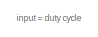
[diagram: root canvas - part 1/6, top center region]
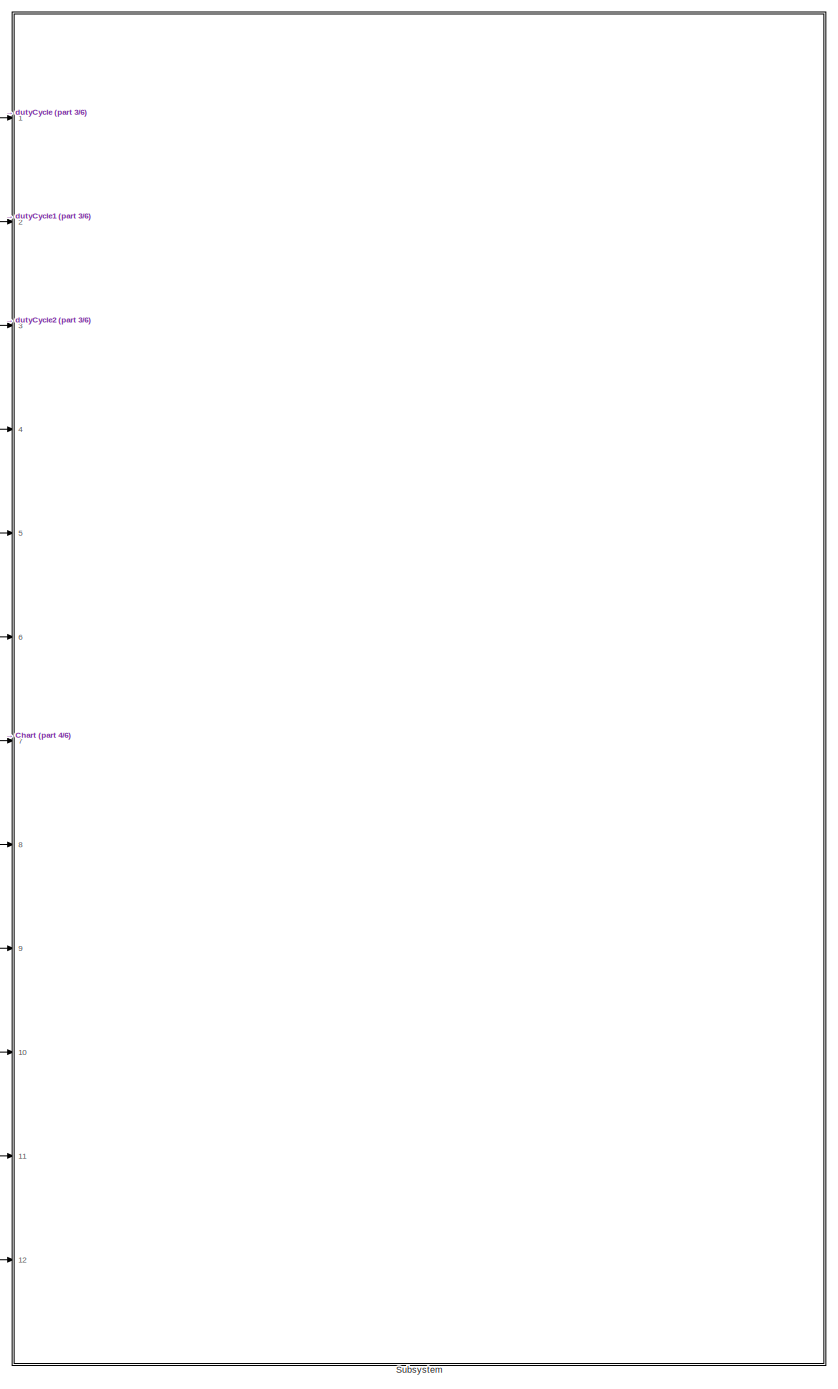
[diagram: root canvas - part 2/6, right side, full height]
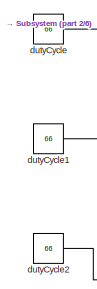
[diagram: root canvas - part 3/6, top center region]
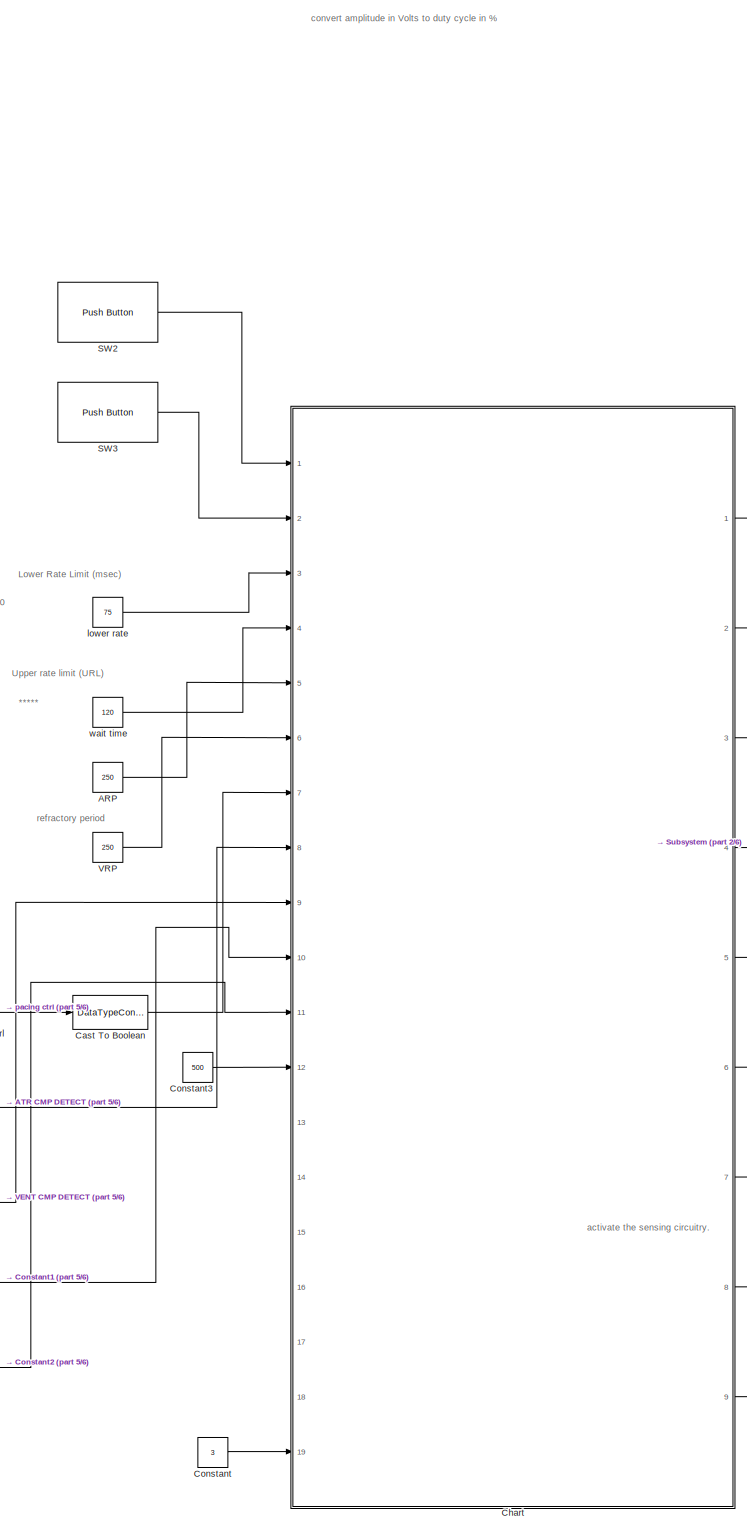
[diagram: root canvas - part 4/6, left side, full height]
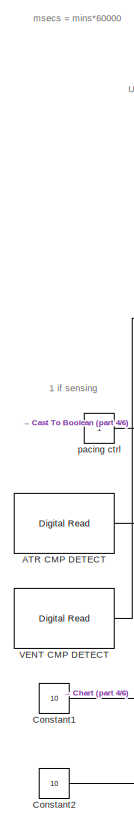
[diagram: root canvas - part 5/6, middle left region]
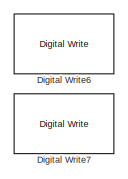
[diagram: root canvas - part 6/6, bottom right region]
MODEL slx_3f0ad3d819d9
KIND model
CONFIG AbsTol = auto
CONFIG EnableMultiTasking = on
CONFIG FixedStep = 1e-3
CONFIG MaxStep = auto
CONFIG MinStep = auto
CONFIG RelTol = 1e-3
CONFIG SampleTimeConstraint = Unconstrained
CONFIG Solver = FixedStepAuto
CONFIG SolverName = FixedStepAuto
CONFIG StartTime = 0.0
CONFIG StopTime = 10.0
BLOCK [Constant] ARP
  Value = 250
BLOCK [Reference] ATR CMP DETECT  REF=frdmk64flib/Digital Read
  Ports = [0, 1]
  SourceBlock = frdmk64flib/Digital Read
  SourceProductBaseCode = EC_FRDM_K64F
  SourceType = freedomk64f.DigitalRead
BLOCK [DataTypeConversion] Cast To Boolean
  OutDataTypeStr = boolean
  RndMeth = Floor
  SaturateOnIntegerOverflow = off
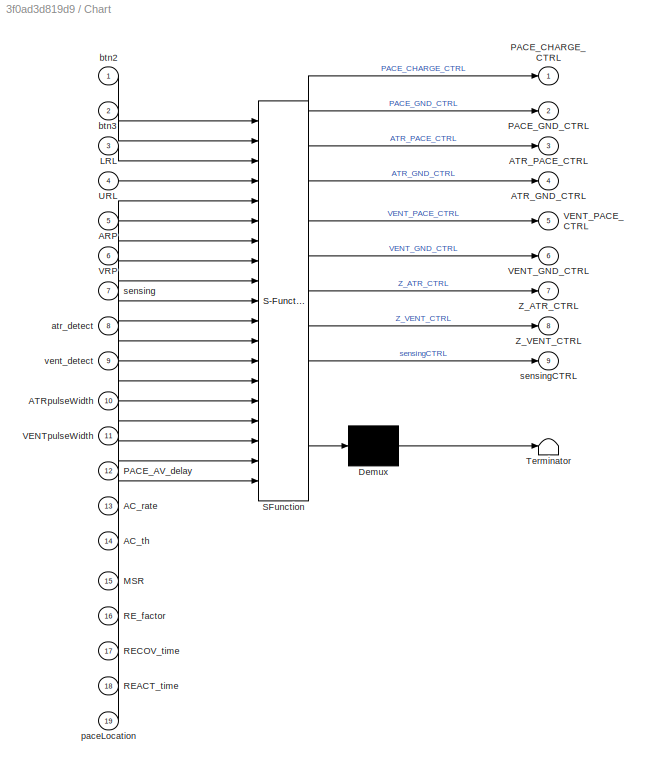
BLOCK [SubSystem] Chart
  ErrorFcn = Stateflow.Translate.translate
  PermitHierarchicalResolution = ExplicitOnly
  Ports = [19, 9]
  RequestExecContextInheritance = off
  SFBlockType = Chart
  TreatAsAtomicUnit = on
BLOCK [Demux] Chart/ Demux 
  Outputs = 1
  Ports = [1, 1]
BLOCK [S-Function] Chart/ SFunction 
  EnableBusSupport = on
  FunctionName = sf_sfun
  PortCounts = [19 10]
  Ports = [19, 10]
  SFcnIsStateOwnerBlock = off
  SFunctionDeploymentMode = off
  Tag = Stateflow S-Function 1
BLOCK [Terminator] Chart/ Terminator 
BLOCK [Inport] Chart/AC_rate
  Port = 13
BLOCK [Inport] Chart/AC_th
  Port = 14
BLOCK [Inport] Chart/ARP
  Port = 5
BLOCK [Outport] Chart/ATR_GND_CTRL
  Port = 4
BLOCK [Outport] Chart/ATR_PACE_CTRL
  Port = 3
BLOCK [Inport] Chart/ATRpulseWidth
  Port = 10
BLOCK [Inport] Chart/LRL
  Port = 3
BLOCK [Inport] Chart/MSR
  Port = 15
BLOCK [Inport] Chart/PACE_AV_delay
  Port = 12
BLOCK [Outport] Chart/PACE_CHARGE_CTRL
BLOCK [Outport] Chart/PACE_GND_CTRL
  Port = 2
BLOCK [Inport] Chart/REACT_time
  Port = 18
BLOCK [Inport] Chart/RECOV_time
  Port = 17
BLOCK [Inport] Chart/RE_factor
  Port = 16
BLOCK [Inport] Chart/URL
  Port = 4
BLOCK [Outport] Chart/VENT_GND_CTRL
  Port = 6
BLOCK [Outport] Chart/VENT_PACE_CTRL
  Port = 5
BLOCK [Inport] Chart/VENTpulseWidth
  Port = 11
BLOCK [Inport] Chart/VRP
  Port = 6
BLOCK [Outport] Chart/Z_ATR_CTRL
  Port = 7
BLOCK [Outport] Chart/Z_VENT_CTRL
  Port = 8
BLOCK [Inport] Chart/atr_detect
  Port = 8
BLOCK [Inport] Chart/btn2
BLOCK [Inport] Chart/btn3
  Port = 2
BLOCK [Inport] Chart/paceLocation
  Port = 19
BLOCK [Inport] Chart/sensing
  Port = 7
BLOCK [Outport] Chart/sensingCTRL
  Port = 9
BLOCK [Inport] Chart/vent_detect
  Port = 9
BLOCK [Constant] Constant
  OutDataTypeStr = double
  Value = 3
BLOCK [Constant] Constant1
  Value = 10
BLOCK [Constant] Constant2
  Value = 10
BLOCK [Constant] Constant3
  Value = 500
BLOCK [Reference] Digital Write6  REF=frdmk64flib/Digital Write
  Commented = on
  Ports = [1]
  SourceBlock = frdmk64flib/Digital Write
  SourceProductBaseCode = EC_FRDM_K64F
  SourceType = freedomk64f.DigitalWrite
BLOCK [Reference] Digital Write7  REF=frdmk64flib/Digital Write
  Commented = on
  Ports = [1]
  SourceBlock = frdmk64flib/Digital Write
  SourceProductBaseCode = EC_FRDM_K64F
  SourceType = freedomk64f.DigitalWrite
BLOCK [Reference] SW2  REF=frdmk64flib/Push Button
  Ports = [0, 1]
  SourceBlock = frdmk64flib/Push Button
  SourceProductBaseCode = EC_FRDM_K64F
  SourceType = freedomk64f.PushButton
BLOCK [Reference] SW3  REF=frdmk64flib/Push Button
  Ports = [0, 1]
  SourceBlock = frdmk64flib/Push Button
  SourceProductBaseCode = EC_FRDM_K64F
  SourceType = freedomk64f.PushButton
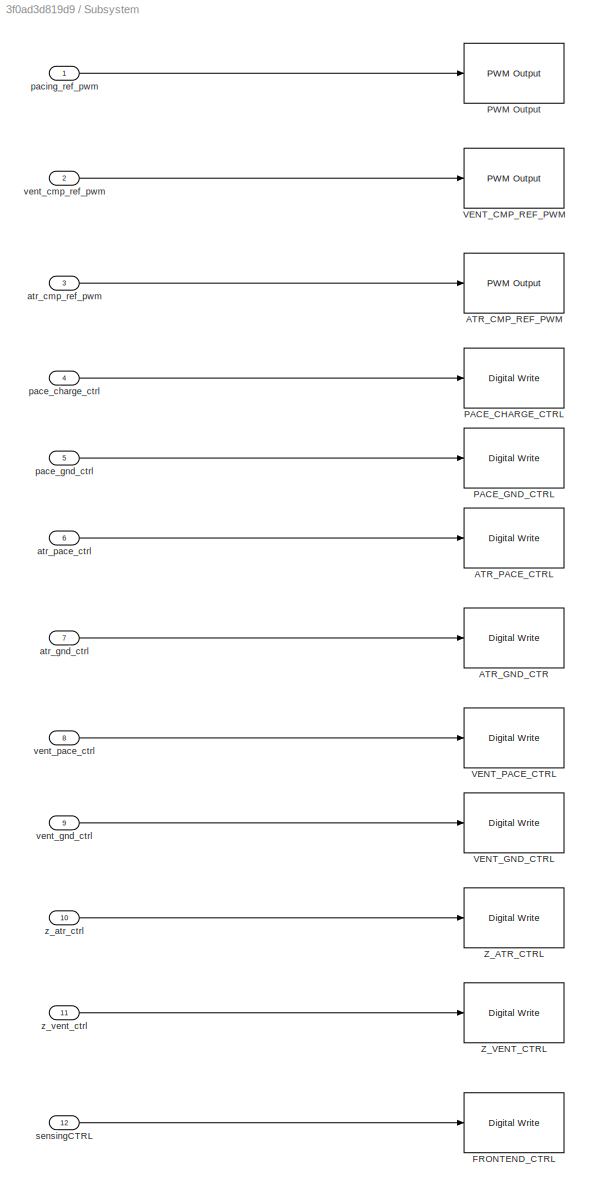
BLOCK [SubSystem] Subsystem
  Ports = [12]
  RequestExecContextInheritance = off
BLOCK [Inport] Subsystem/ z_vent_ctrl
  Port = 11
BLOCK [Reference] Subsystem/ATR_CMP_REF_PWM  REF=frdmk64flib/PWM Output
  Ports = [1]
  SourceBlock = frdmk64flib/PWM Output
  SourceProductBaseCode = EC_FRDM_K64F
  SourceType = freedomk64f.PWMOutput
BLOCK [Reference] Subsystem/ATR_GND_CTR  REF=frdmk64flib/Digital Write
  Ports = [1]
  SourceBlock = frdmk64flib/Digital Write
  SourceProductBaseCode = EC_FRDM_K64F
  SourceType = freedomk64f.DigitalWrite
BLOCK [Reference] Subsystem/ATR_PACE_CTRL  REF=frdmk64flib/Digital Write
  Ports = [1]
  SourceBlock = frdmk64flib/Digital Write
  SourceProductBaseCode = EC_FRDM_K64F
  SourceType = freedomk64f.DigitalWrite
BLOCK [Reference] Subsystem/FRONTEND_CTRL  REF=frdmk64flib/Digital Write
  Ports = [1]
  SourceBlock = frdmk64flib/Digital Write
  SourceProductBaseCode = EC_FRDM_K64F
  SourceType = freedomk64f.DigitalWrite
BLOCK [Reference] Subsystem/PACE_CHARGE_CTRL  REF=frdmk64flib/Digital Write
  Ports = [1]
  SourceBlock = frdmk64flib/Digital Write
  SourceProductBaseCode = EC_FRDM_K64F
  SourceType = freedomk64f.DigitalWrite
BLOCK [Reference] Subsystem/PACE_GND_CTRL  REF=frdmk64flib/Digital Write
  Ports = [1]
  SourceBlock = frdmk64flib/Digital Write
  SourceProductBaseCode = EC_FRDM_K64F
  SourceType = freedomk64f.DigitalWrite
BLOCK [Reference] Subsystem/PWM Output  REF=frdmk64flib/PWM Output
  Ports = [1]
  SourceBlock = frdmk64flib/PWM Output
  SourceProductBaseCode = EC_FRDM_K64F
  SourceType = freedomk64f.PWMOutput
BLOCK [Reference] Subsystem/VENT_CMP_REF_PWM  REF=frdmk64flib/PWM Output
  Ports = [1]
  SourceBlock = frdmk64flib/PWM Output
  SourceProductBaseCode = EC_FRDM_K64F
  SourceType = freedomk64f.PWMOutput
BLOCK [Reference] Subsystem/VENT_GND_CTRL  REF=frdmk64flib/Digital Write
  Ports = [1]
  SourceBlock = frdmk64flib/Digital Write
  SourceProductBaseCode = EC_FRDM_K64F
  SourceType = freedomk64f.DigitalWrite
BLOCK [Reference] Subsystem/VENT_PACE_CTRL  REF=frdmk64flib/Digital Write
  Ports = [1]
  SourceBlock = frdmk64flib/Digital Write
  SourceProductBaseCode = EC_FRDM_K64F
  SourceType = freedomk64f.DigitalWrite
BLOCK [Reference] Subsystem/Z_ATR_CTRL  REF=frdmk64flib/Digital Write
  Ports = [1]
  SourceBlock = frdmk64flib/Digital Write
  SourceProductBaseCode = EC_FRDM_K64F
  SourceType = freedomk64f.DigitalWrite
BLOCK [Reference] Subsystem/Z_VENT_CTRL  REF=frdmk64flib/Digital Write
  Ports = [1]
  SourceBlock = frdmk64flib/Digital Write
  SourceProductBaseCode = EC_FRDM_K64F
  SourceType = freedomk64f.DigitalWrite
BLOCK [Inport] Subsystem/atr_cmp_ref_pwm
  Port = 3
BLOCK [Inport] Subsystem/atr_gnd_ctrl
  Port = 7
BLOCK [Inport] Subsystem/atr_pace_ctrl
  Port = 6
BLOCK [Inport] Subsystem/pace_charge_ctrl
  Port = 4
BLOCK [Inport] Subsystem/pace_gnd_ctrl
  Port = 5
BLOCK [Inport] Subsystem/pacing_ref_pwm
BLOCK [Inport] Subsystem/sensingCTRL
  Port = 12
BLOCK [Inport] Subsystem/vent_cmp_ref_pwm
  Port = 2
BLOCK [Inport] Subsystem/vent_gnd_ctrl
  Port = 9
BLOCK [Inport] Subsystem/vent_pace_ctrl
  Port = 8
BLOCK [Inport] Subsystem/z_atr_ctrl
  Port = 10
BLOCK [Reference] VENT CMP DETECT  REF=frdmk64flib/Digital Read
  Ports = [0, 1]
  SourceBlock = frdmk64flib/Digital Read
  SourceProductBaseCode = EC_FRDM_K64F
  SourceType = freedomk64f.DigitalRead
BLOCK [Constant] VRP
  Value = 250
BLOCK [Constant] dutyCycle
  Value = 66
BLOCK [Constant] dutyCycle1
  Value = 66
BLOCK [Constant] dutyCycle2
  Value = 66
BLOCK [Constant] lower rate
  Value = 75
BLOCK [Constant] pacing ctrl
BLOCK [Constant] wait time
  Value = 120
ANNOTATION (root): *****
ANNOTATION (root): 1 if sensing
ANNOTATION (root): convert amplitude in Volts to duty cycle in %
ANNOTATION (root): Lower Rate Limit (msec)
ANNOTATION (root): Upper rate limit (URL)
ANNOTATION (root): activate the sensing circuitry.
ANNOTATION (root): input = duty cycle
ANNOTATION (root): msecs = mins*60000
ANNOTATION (root): refractory period
LINE ARP:1 -> Chart:5
LINE ATR CMP DETECT:1 -> Chart:8
LINE Cast To Boolean:1 -> Chart:7
LINE Chart:1 -> Subsystem:4
LINE Chart:2 -> Subsystem:5
LINE Chart:3 -> Subsystem:6
LINE Chart:4 -> Subsystem:7
LINE Chart:5 -> Subsystem:8
LINE Chart:6 -> Subsystem:9
LINE Chart:7 -> Subsystem:10
LINE Chart:8 -> Subsystem:11
LINE Chart:9 -> Subsystem:12
LINE Constant1:1 -> Chart:10
LINE Constant2:1 -> Chart:11
LINE Constant3:1 -> Chart:12
LINE Constant:1 -> Chart:19
LINE SW2:1 -> Chart:1
LINE SW3:1 -> Chart:2
LINE Subsystem/ z_vent_ctrl:1 -> Subsystem/Z_VENT_CTRL:1
LINE Subsystem/atr_cmp_ref_pwm:1 -> Subsystem/ATR_CMP_REF_PWM:1
LINE Subsystem/atr_gnd_ctrl:1 -> Subsystem/ATR_GND_CTR:1
LINE Subsystem/atr_pace_ctrl:1 -> Subsystem/ATR_PACE_CTRL:1
LINE Subsystem/pace_charge_ctrl:1 -> Subsystem/PACE_CHARGE_CTRL:1
LINE Subsystem/pace_gnd_ctrl:1 -> Subsystem/PACE_GND_CTRL:1
LINE Subsystem/pacing_ref_pwm:1 -> Subsystem/PWM Output:1
LINE Subsystem/sensingCTRL:1 -> Subsystem/FRONTEND_CTRL:1
LINE Subsystem/vent_cmp_ref_pwm:1 -> Subsystem/VENT_CMP_REF_PWM:1
LINE Subsystem/vent_gnd_ctrl:1 -> Subsystem/VENT_GND_CTRL:1
LINE Subsystem/vent_pace_ctrl:1 -> Subsystem/VENT_PACE_CTRL:1
LINE Subsystem/z_atr_ctrl:1 -> Subsystem/Z_ATR_CTRL:1
LINE VENT CMP DETECT:1 -> Chart:9
LINE VRP:1 -> Chart:6
LINE dutyCycle1:1 -> Subsystem:2
LINE dutyCycle2:1 -> Subsystem:3
LINE dutyCycle:1 -> Subsystem:1
LINE lower rate:1 -> Chart:3
LINE pacing ctrl:1 -> Cast To Boolean:1
LINE wait time:1 -> Chart:4
CHART Chart states=27 transitions=36
  STATE_LABEL '<!DOCTYPE HTML PUBLIC "-//W3C//DTD HTML 4.0//EN" "http://www.w3.org/TR/REC-html40/strict.dtd">\n<html><head><meta name="qrichtext" content="1" /><style type="text/css">\np, li { white-space: pre-wrap; }\n</style></head><body align="left" style=" font-family:\'Helvetica\'; font-size:12px; font-weight:400; font-style:normal;">\n<p align="left" style=" margin-top:0px; margin-bottom:0px; margin-left:0px; ma...<+121ch>'  <repeated x3 — deduplicated; at blocks: Chart>
  STATE_LABEL 'SENSING_VENT_TRUE \nentry:\nsensingCTRL = true;'
  STATE_LABEL 'VENT_CHARGING_AND_DISCHARGE \nentry:\n% for this state paceLocation = 1\n%begin charge and discharge cycle for ventricle\nmsecPerPace = 60000/RE; %new value in msec\nsensingCTRL = sensing; %enables the sensing circuitry if sensing = 1. Controled by input "sensing"\nATR_PACE_CTRL = false;\nVENT_PACE_CTRL = false;\nPACE_CHARGE_CTRL = true;\nPACE_GND_CTRL = true;\nZ_VENT_CTRL = false;\nZ_ATR_CTRL = false\nVENT_G...<+38ch>'
  STATE_LABEL 'VENT_PACING\nentry:\n% pace ventricle\nPACE_GND_CTRL = true;\nVENT_PACE_CTRL = true;\nVENT_GND_CTRL = false;\nZ_VENT_CTRL = false;\nZ_ATR_CTRL = false;\nATR_GND_CTRL = false;\nATR_PACE_CTRL = false;\nsensingCTRL = sensing; %enables the sensing circuitry if sensing = 1. Controled by input "sensing"\n'
  STATE_LABEL 'RECOVERY_V\nRE = RE - RE_factor\n% RE factor need to time a rate (unit ppm)\n%it is depend on LRL and MSR values'
  STATE_LABEL 'REACTION_V\nRE = RE + RE_factor;\n% RE factor need to time a rate (unit ppm)\n%it is depend on LRL and MSR values'
  STATE_LABEL 'SWITCH TO AOO, AAI,AOOR,AAIR'
  STATE_LABEL 'SWITCH TO VOO,VVI,VOOR,VVIR'
  STATE_LABEL 'ATR_PACING\nentry:\n% pace atrium\nPACE_GND_CTRL = true;\nVENT_PACE_CTRL = false;\nVENT_GND_CTRL = false;\nZ_VENT_CTRL = false;\nZ_ATR_CTRL = false;\nATR_GND_CTRL = false;\nATR_PACE_CTRL = true;\nsensingCTRL = sensing; %enables the sensing circuitry if sensing = 1. Controled by input "sensing"'
  STATE_LABEL 'ATR_CHARGING_AND_DISCHARGE\nentry:\n% for this state paceLocation = 0\n%begin charge and discharge cycle for atrium\nmsecPerPace = 60000/RE; %new value for pace timing with msec units\nsensingCTRL = sensing; %enables the sensing circuitry if sensing = 1. Controled by input "sensing"\nATR_PACE_CTRL = false;\nVENT_PACE_CTRL = false;\nPACE_CHARGE_CTRL = true;\nPACE_GND_CTRL = true;\nZ_VENT_CTRL = false;\nZ_ATR_...<+58ch>'
  STATE_LABEL '<!DOCTYPE HTML PUBLIC "-//W3C//DTD HTML 4.0//EN" "http://www.w3.org/TR/REC-html40/strict.dtd">\n<html><head><meta name="qrichtext" content="1" /><style type="text/css">\np, li { white-space: pre-wrap; }\n</style></head><body align="left" style=" font-family:\'Helvetica\'; font-size:12px; font-weight:400; font-style:normal;">\n<p align="left" style=" margin-top:0px; margin-bottom:0px; margin-left:0px; ma...<+120ch>'
  STATE_LABEL 'SWITCH TO DOO,DOOR'
  STATE_LABEL 'SWITCH TO VOO,VVI,VOOR,VVIR'
  STATE_LABEL 'RECOVERY_A\nRE = RE - RE_factor\n% RE factor need to time a rate (unit ppm)\n%it is depend on LRL and MSR values'
  STATE_LABEL 'SENSING_ATR_TRUE \nentry:\nsensingCTRL = true;'
  STATE_LABEL 'REACTION_A\nRE = RE + RE_factor;\n% RE factor need to time a rate (unit ppm)\n%it is depend on LRL and MSR values'
  STATE_LABEL 'SWITCH TO DOO,DOOR'
  STATE_LABEL 'SWITCH TO AOO, AAI,AOOR,AAIR'
  STATE_LABEL 'DUAL_ATR_CHARGING_AND_DISCHARGE\nentry:\nmsecPerPace = 60000/RE;\n% for this state paceLocation = 3\n%begin charge and discharge cycle for atrium\nATR_PACE_CTRL = false;\nVENT_PACE_CTRL = false;\nPACE_CHARGE_CTRL = true;\nPACE_GND_CTRL = true;\nZ_VENT_CTRL = false;\nZ_ATR_CTRL = false;\nVENT_GND_CTRL = false;\nATR_GND_CTRL = true;\n'
  STATE_LABEL 'DUAL_ATR_PACING\nentry:\n% pace atrium\nPACE_GND_CTRL = true;\nVENT_PACE_CTRL = false;\nVENT_GND_CTRL = false;\nZ_VENT_CTRL = false;\nZ_ATR_CTRL = false;\nATR_GND_CTRL = false;\nATR_PACE_CTRL = true;\nAP_flag = true; % rise to true when Atrium have a pace\n'
  STATE_LABEL '<!DOCTYPE HTML PUBLIC "-//W3C//DTD HTML 4.0//EN" "http://www.w3.org/TR/REC-html40/strict.dtd">\n<html><head><meta name="qrichtext" content="1" /><style type="text/css">\np, li { white-space: pre-wrap; }\n</style></head><body align="left" style=" font-family:\'Helvetica\'; font-size:12px; font-weight:400; font-style:normal;">\n<p align="left" style=" margin-top:0px; margin-bottom:0px; margin-left:0px; ma...<+118ch>'
  STATE_LABEL 'DUAL_VENT_PACING\nentry:\n% pace ventricle\nPACE_GND_CTRL = true;\nVENT_PACE_CTRL = true;\nVENT_GND_CTRL = false;\nZ_VENT_CTRL = false;\nZ_ATR_CTRL = false;\nATR_GND_CTRL = false;\nATR_PACE_CTRL = false;\nsensingCTRL = sensing; %enables the sensing circuitry if sensing = 1. Controled by input "sensing"\nAP_flag = false;'
  STATE_LABEL 'DUAL_VENT_CHARGING_AND_DISCHARGE\nentry:\n%begin charge and discharge cycle for ventricle\nmsecPerPace = 60000/RE; %new value in msec\nsensingCTRL = sensing; %enables the sensing circuitry if sensing = 1. Controled by input "sensing"\nATR_PACE_CTRL = false;\nVENT_PACE_CTRL = false;\nPACE_CHARGE_CTRL = true;\nPACE_GND_CTRL = true;\nZ_VENT_CTRL = false;\nZ_ATR_CTRL = false\nVENT_GND_CTRL = true;\nATR_GND_CTRL =...<+7ch>'
  STATE_LABEL 'RECOVERY_D\nRE = RE - RE_factor\n% RE factor need to time a rate (unit ppm)\n%it is depend on LRL and MSR values'
  STATE_LABEL 'REACTION_D\nRE = RE + RE_factor;\n% RE factor need to time a rate (unit ppm)\n%it is depend on LRL and MSR values'
CHART  states=0 transitions=0
